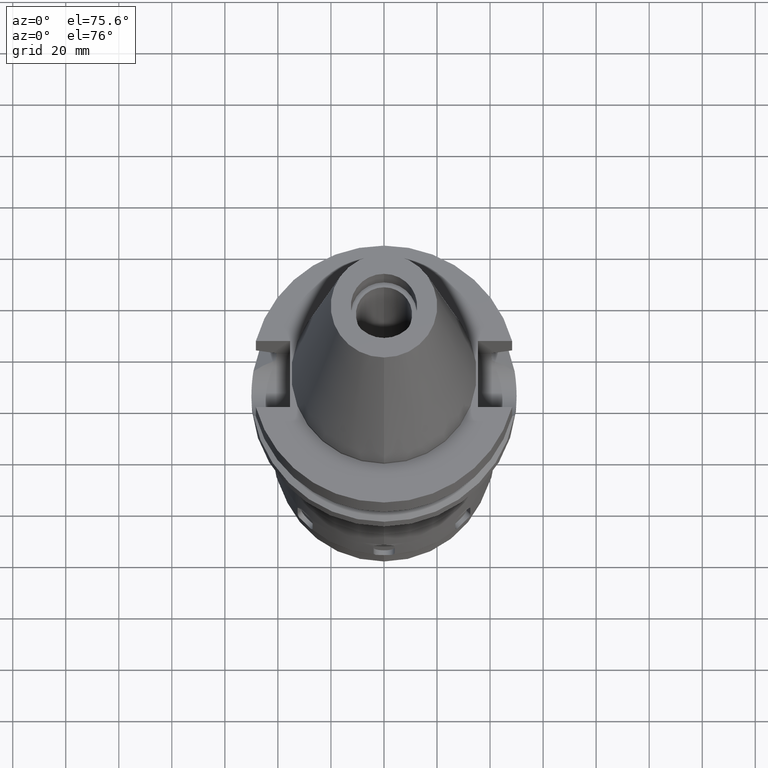
[diagram: clean part render]
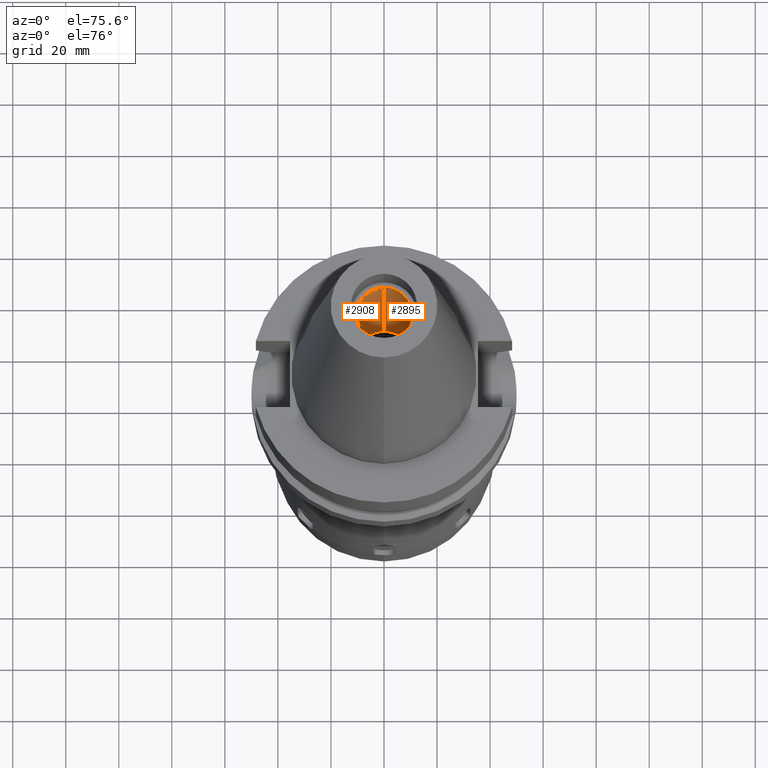
[diagram: same view with one multi-face feature highlighted, each face labeled with its STEP entity id]
A machine part, auxiliary view. The highlighted faces form ONE feature: a constant-radius fillet chain: 2 tangent blend faces with common blend radius 10.6 mm. The faces share edges in the B-rep.
Their STEP definitions:
[1] entity #2895 (Cylinder):
#48=CARTESIAN_POINT('',(0.E0,2.616335421698E-14,8.88E1));
#49=DIRECTION('',(0.E0,0.E0,1.E0));
#50=DIRECTION('',(0.E0,-1.E0,0.E0));
#51=AXIS2_PLACEMENT_3D('',#48,#49,#50);
#64=DIRECTION('',(0.E0,0.E0,1.E0));
#65=VECTOR('',#64,6.68E1);
#66=CARTESIAN_POINT('',(0.E0,1.06E1,2.2E1));
#67=LINE('',#66,#65);
#71=DIRECTION('',(0.E0,0.E0,1.E0));
#72=VECTOR('',#71,6.68E1);
#73=CARTESIAN_POINT('',(0.E0,-1.06E1,2.2E1));
#74=LINE('',#73,#72);
#102=CARTESIAN_POINT('',(0.E0,2.616335421698E-14,2.2E1));
#103=DIRECTION('',(0.E0,0.E0,-1.E0));
#104=DIRECTION('',(0.E0,1.E0,0.E0));
#105=AXIS2_PLACEMENT_3D('',#102,#103,#104);
#2482=CARTESIAN_POINT('',(0.E0,-1.06E1,8.88E1));
#2483=CARTESIAN_POINT('',(0.E0,1.06E1,8.88E1));
#2484=VERTEX_POINT('',#2482);
#2485=VERTEX_POINT('',#2483);
#2486=CARTESIAN_POINT('',(0.E0,1.06E1,2.2E1));
#2487=VERTEX_POINT('',#2486);
#2488=CARTESIAN_POINT('',(0.E0,-1.06E1,2.2E1));
#2489=VERTEX_POINT('',#2488);
#2881=CARTESIAN_POINT('',(0.E0,2.616335421698E-14,1.1364E2));
#2882=DIRECTION('',(0.E0,0.E0,-1.E0));
#2883=DIRECTION('',(0.E0,-1.E0,0.E0));
#2884=AXIS2_PLACEMENT_3D('',#2881,#2882,#2883);
#2885=CYLINDRICAL_SURFACE('',#2884,1.06E1);
#2887=ORIENTED_EDGE('',*,*,#2886,.T.);
#2888=ORIENTED_EDGE('',*,*,#2874,.F.);
#2890=ORIENTED_EDGE('',*,*,#2889,.F.);
#2892=ORIENTED_EDGE('',*,*,#2891,.F.);
#2893=EDGE_LOOP('',(#2887,#2888,#2890,#2892));
#2894=FACE_OUTER_BOUND('',#2893,.F.);
#52=CIRCLE('',#51,1.06E1);
#106=CIRCLE('',#105,1.06E1);
#2874=EDGE_CURVE('',#2484,#2485,#52,.T.);
#2886=EDGE_CURVE('',#2487,#2485,#67,.T.);
#2889=EDGE_CURVE('',#2489,#2484,#74,.T.);
#2891=EDGE_CURVE('',#2487,#2489,#106,.T.);
#2895=ADVANCED_FACE('',(#2894),#2885,.F.);
[2] entity #2908 (Cylinder):
#56=CARTESIAN_POINT('',(0.E0,2.616335421698E-14,8.88E1));
#57=DIRECTION('',(0.E0,0.E0,1.E0));
#58=DIRECTION('',(0.E0,1.E0,0.E0));
#59=AXIS2_PLACEMENT_3D('',#56,#57,#58);
#64=DIRECTION('',(0.E0,0.E0,1.E0));
#65=VECTOR('',#64,6.68E1);
#66=CARTESIAN_POINT('',(0.E0,1.06E1,2.2E1));
#67=LINE('',#66,#65);
#71=DIRECTION('',(0.E0,0.E0,1.E0));
#72=VECTOR('',#71,6.68E1);
#73=CARTESIAN_POINT('',(0.E0,-1.06E1,2.2E1));
#74=LINE('',#73,#72);
#94=CARTESIAN_POINT('',(0.E0,2.616335421698E-14,2.2E1));
#95=DIRECTION('',(0.E0,0.E0,-1.E0));
#96=DIRECTION('',(0.E0,-1.E0,0.E0));
#97=AXIS2_PLACEMENT_3D('',#94,#95,#96);
#2482=CARTESIAN_POINT('',(0.E0,-1.06E1,8.88E1));
#2483=CARTESIAN_POINT('',(0.E0,1.06E1,8.88E1));
#2484=VERTEX_POINT('',#2482);
#2485=VERTEX_POINT('',#2483);
#2486=CARTESIAN_POINT('',(0.E0,1.06E1,2.2E1));
#2487=VERTEX_POINT('',#2486);
#2488=CARTESIAN_POINT('',(0.E0,-1.06E1,2.2E1));
#2489=VERTEX_POINT('',#2488);
#2896=CARTESIAN_POINT('',(0.E0,2.616335421698E-14,1.1364E2));
#2897=DIRECTION('',(0.E0,0.E0,-1.E0));
#2898=DIRECTION('',(0.E0,-1.E0,0.E0));
#2899=AXIS2_PLACEMENT_3D('',#2896,#2897,#2898);
#2900=CYLINDRICAL_SURFACE('',#2899,1.06E1);
#2901=ORIENTED_EDGE('',*,*,#2886,.F.);
#2903=ORIENTED_EDGE('',*,*,#2902,.F.);
#2904=ORIENTED_EDGE('',*,*,#2889,.T.);
#2905=ORIENTED_EDGE('',*,*,#2876,.F.);
#2906=EDGE_LOOP('',(#2901,#2903,#2904,#2905));
#2907=FACE_OUTER_BOUND('',#2906,.F.);
#60=CIRCLE('',#59,1.06E1);
#98=CIRCLE('',#97,1.06E1);
#2876=EDGE_CURVE('',#2485,#2484,#60,.T.);
#2886=EDGE_CURVE('',#2487,#2485,#67,.T.);
#2889=EDGE_CURVE('',#2489,#2484,#74,.T.);
#2902=EDGE_CURVE('',#2489,#2487,#98,.T.);
#2908=ADVANCED_FACE('',(#2907),#2900,.F.);